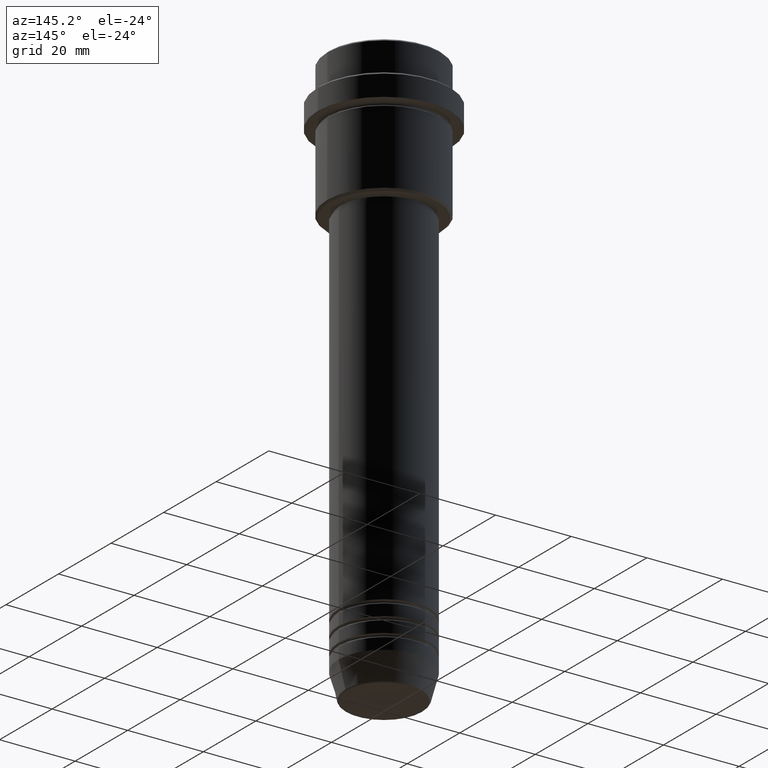
[diagram: clean part render]
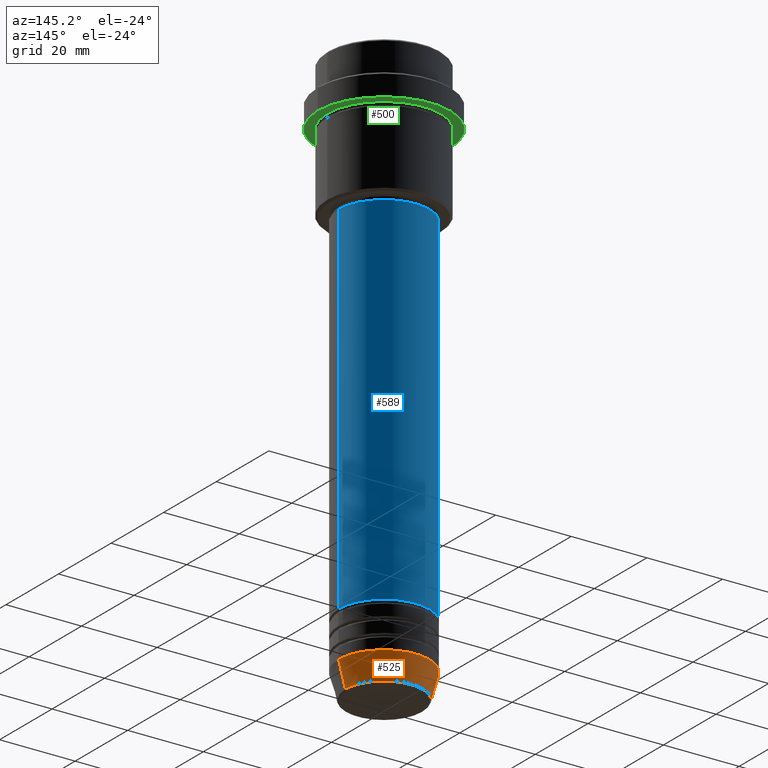
[diagram: same view with three faces highlighted in distinct colors, each labeled with its STEP entity id]
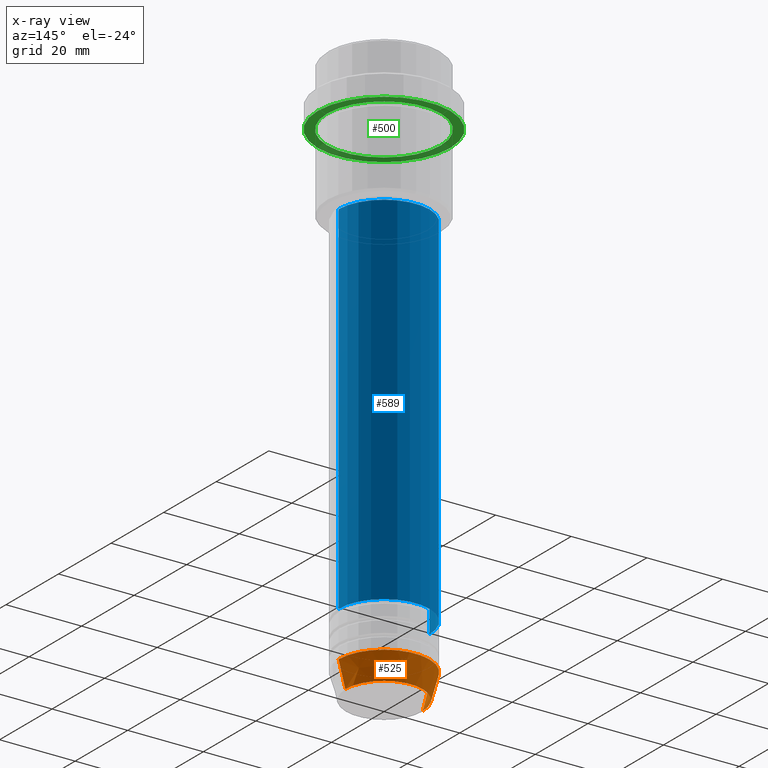
[diagram: x-ray of the same camera — body ghosted, the three highlighted faces saturated]
A machine part, auxiliary view with three faces highlighted in distinct colors.
The next image is the same camera in x-ray (body ghosted, the three faces saturated) — at least one of them is partly hidden behind the body in this view.
Their STEP definitions:

[orange] entity #525 — the highlighted conical surface has half-angle 15 deg.
#26 = VERTEX_POINT ( 'NONE', #375 ) ;
#30 = VECTOR ( 'NONE', #415, 1000.000000000000000 ) ;
#51 = CIRCLE ( 'NONE', #904, 10.22365507213718416 ) ;
#65 = CARTESIAN_POINT ( 'NONE',  ( 0.000000000000000000, 0.000000000000000000, -150.6294095225512422 ) ) ;
#105 = DIRECTION ( 'NONE',  ( -0.000000000000000000, -0.000000000000000000, 1.000000000000000000 ) ) ;
#117 = CARTESIAN_POINT ( 'NONE',  ( 12.00000000000000000, 0.000000000000000000, -144.0000000000000000 ) ) ;
#124 = CIRCLE ( 'NONE', #1133, 12.00000000000000000 ) ;
#202 = EDGE_CURVE ( 'NONE', #842, #960, #527, .T. ) ;
#204 = ORIENTED_EDGE ( 'NONE', *, *, #1298, .T. ) ;
#220 = DIRECTION ( 'NONE',  ( -0.000000000000000000, -0.000000000000000000, 1.000000000000000000 ) ) ;
#230 = CARTESIAN_POINT ( 'NONE',  ( -12.00000000000000000, 1.469576158976823947E-15, -144.0000000000000000 ) ) ;
#317 = CARTESIAN_POINT ( 'NONE',  ( 12.00000000000000000, 0.000000000000000000, -144.0000000000000000 ) ) ;
#375 = CARTESIAN_POINT ( 'NONE',  ( -10.22365507213718416, 1.360806402472382153E-15, -150.6294095225512422 ) ) ;
#401 = ORIENTED_EDGE ( 'NONE', *, *, #202, .F. ) ;
#405 = FACE_OUTER_BOUND ( 'NONE', #579, .T. ) ;
#406 = ORIENTED_EDGE ( 'NONE', *, *, #775, .F. ) ;
#415 = DIRECTION ( 'NONE',  ( -0.2588190451025222938, 3.169619151431783430E-17, 0.9659258262890678681 ) ) ;
#441 = ORIENTED_EDGE ( 'NONE', *, *, #751, .T. ) ;
#451 = VECTOR ( 'NONE', #1402, 1000.000000000000000 ) ;
#496 = DIRECTION ( 'NONE',  ( -0.000000000000000000, -0.000000000000000000, 1.000000000000000000 ) ) ;
#525 = ADVANCED_FACE ( 'NONE', ( #405 ), #1083, .T. ) ;
#527 = LINE ( 'NONE', #317, #451 ) ;
#579 = EDGE_LOOP ( 'NONE', ( #441, #204, #406, #401 ) ) ;
#648 = DIRECTION ( 'NONE',  ( 1.000000000000000000, 0.000000000000000000, 0.000000000000000000 ) ) ;
#715 = CARTESIAN_POINT ( 'NONE',  ( 10.22365507213718416, 0.000000000000000000, -150.6294095225512422 ) ) ;
#735 = CARTESIAN_POINT ( 'NONE',  ( 0.000000000000000000, 0.000000000000000000, -144.0000000000000000 ) ) ;
#751 = EDGE_CURVE ( 'NONE', #842, #26, #51, .T. ) ;
#775 = EDGE_CURVE ( 'NONE', #960, #991, #124, .T. ) ;
#842 = VERTEX_POINT ( 'NONE', #715 ) ;
#904 = AXIS2_PLACEMENT_3D ( 'NONE', #65, #496, #926 ) ;
#926 = DIRECTION ( 'NONE',  ( 1.000000000000000000, 0.000000000000000000, 0.000000000000000000 ) ) ;
#960 = VERTEX_POINT ( 'NONE', #117 ) ;
#991 = VERTEX_POINT ( 'NONE', #230 ) ;
#1064 = AXIS2_PLACEMENT_3D ( 'NONE', #735, #220, #1260 ) ;
#1083 = CONICAL_SURFACE ( 'NONE', #1064, 12.00000000000000000, 0.2617993877991510177 ) ;
#1133 = AXIS2_PLACEMENT_3D ( 'NONE', #1169, #105, #648 ) ;
#1166 = LINE ( 'NONE', #1176, #30 ) ;
#1169 = CARTESIAN_POINT ( 'NONE',  ( 0.000000000000000000, 0.000000000000000000, -144.0000000000000000 ) ) ;
#1176 = CARTESIAN_POINT ( 'NONE',  ( -12.00000000000000000, 1.469576158976823947E-15, -144.0000000000000000 ) ) ;
#1260 = DIRECTION ( 'NONE',  ( 1.000000000000000000, 0.000000000000000000, 0.000000000000000000 ) ) ;
#1298 = EDGE_CURVE ( 'NONE', #26, #991, #1166, .T. ) ;
#1402 = DIRECTION ( 'NONE',  ( 0.2588190451025222938, 0.000000000000000000, 0.9659258262890678681 ) ) ;

[blue] entity #589 — the highlighted cylindrical surface (partial cylindrical patch) has radius 12 mm, axis along (-0, -0, 1).
#8 = VERTEX_POINT ( 'NONE', #385 ) ;
#17 = VERTEX_POINT ( 'NONE', #703 ) ;
#67 = EDGE_CURVE ( 'NONE', #8, #873, #1156, .T. ) ;
#75 = CIRCLE ( 'NONE', #258, 11.99999999999999822 ) ;
#158 = CARTESIAN_POINT ( 'NONE',  ( 0.000000000000000000, 0.000000000000000000, -131.9999999999998579 ) ) ;
#209 = ORIENTED_EDGE ( 'NONE', *, *, #67, .T. ) ;
#258 = AXIS2_PLACEMENT_3D ( 'NONE', #1110, #770, #1012 ) ;
#291 = DIRECTION ( 'NONE',  ( -0.000000000000000000, -0.000000000000000000, 1.000000000000000000 ) ) ;
#308 = EDGE_LOOP ( 'NONE', ( #209, #1026, #447, #465 ) ) ;
#385 = CARTESIAN_POINT ( 'NONE',  ( 12.00000000000000000, 0.000000000000000000, -131.9999999999998579 ) ) ;
#413 = VERTEX_POINT ( 'NONE', #1016 ) ;
#431 = VECTOR ( 'NONE', #291, 1000.000000000000000 ) ;
#447 = ORIENTED_EDGE ( 'NONE', *, *, #932, .F. ) ;
#465 = ORIENTED_EDGE ( 'NONE', *, *, #1173, .F. ) ;
#493 = DIRECTION ( 'NONE',  ( -0.000000000000000000, -0.000000000000000000, 1.000000000000000000 ) ) ;
#501 = LINE ( 'NONE', #935, #1161 ) ;
#520 = AXIS2_PLACEMENT_3D ( 'NONE', #1099, #1324, #1194 ) ;
#587 = CARTESIAN_POINT ( 'NONE',  ( -12.00000000000000000, 1.469576158976823947E-15, -131.9999999999998579 ) ) ;
#589 = ADVANCED_FACE ( 'NONE', ( #1013 ), #773, .T. ) ;
#703 = CARTESIAN_POINT ( 'NONE',  ( -11.99999999999999822, 1.469576158976823750E-15, -37.00000000000000000 ) ) ;
#770 = DIRECTION ( 'NONE',  ( -0.000000000000000000, -0.000000000000000000, 1.000000000000000000 ) ) ;
#773 = CYLINDRICAL_SURFACE ( 'NONE', #520, 12.00000000000000000 ) ;
#873 = VERTEX_POINT ( 'NONE', #587 ) ;
#921 = DIRECTION ( 'NONE',  ( 1.000000000000000000, 0.000000000000000000, 0.000000000000000000 ) ) ;
#932 = EDGE_CURVE ( 'NONE', #413, #17, #75, .T. ) ;
#935 = CARTESIAN_POINT ( 'NONE',  ( 12.00000000000000000, 0.000000000000000000, 0.000000000000000000 ) ) ;
#941 = EDGE_CURVE ( 'NONE', #873, #17, #1033, .T. ) ;
#1012 = DIRECTION ( 'NONE',  ( 1.000000000000000000, 0.000000000000000000, 0.000000000000000000 ) ) ;
#1013 = FACE_OUTER_BOUND ( 'NONE', #308, .T. ) ;
#1016 = CARTESIAN_POINT ( 'NONE',  ( 11.99999999999999822, 0.000000000000000000, -37.00000000000000000 ) ) ;
#1026 = ORIENTED_EDGE ( 'NONE', *, *, #941, .T. ) ;
#1033 = LINE ( 'NONE', #1224, #431 ) ;
#1099 = CARTESIAN_POINT ( 'NONE',  ( 0.000000000000000000, 0.000000000000000000, 0.000000000000000000 ) ) ;
#1110 = CARTESIAN_POINT ( 'NONE',  ( 0.000000000000000000, 0.000000000000000000, -37.00000000000000000 ) ) ;
#1156 = CIRCLE ( 'NONE', #1315, 12.00000000000000000 ) ;
#1161 = VECTOR ( 'NONE', #1340, 1000.000000000000000 ) ;
#1173 = EDGE_CURVE ( 'NONE', #8, #413, #501, .T. ) ;
#1194 = DIRECTION ( 'NONE',  ( 1.000000000000000000, 0.000000000000000000, 0.000000000000000000 ) ) ;
#1224 = CARTESIAN_POINT ( 'NONE',  ( -12.00000000000000000, 1.469576158976823947E-15, 0.000000000000000000 ) ) ;
#1315 = AXIS2_PLACEMENT_3D ( 'NONE', #158, #493, #921 ) ;
#1324 = DIRECTION ( 'NONE',  ( -0.000000000000000000, -0.000000000000000000, 1.000000000000000000 ) ) ;
#1340 = DIRECTION ( 'NONE',  ( -0.000000000000000000, -0.000000000000000000, 1.000000000000000000 ) ) ;

[green] entity #500 — the highlighted planar face has unit normal (0, 0, -1).
#15 = CARTESIAN_POINT ( 'NONE',  ( 14.99999999999999645, 1.836970198721029194E-15, -14.99999999999998579 ) ) ;
#53 = EDGE_LOOP ( 'NONE', ( #1101, #854 ) ) ;
#73 = CIRCLE ( 'NONE', #1220, 17.50000000000000000 ) ;
#146 = VERTEX_POINT ( 'NONE', #305 ) ;
#181 = DIRECTION ( 'NONE',  ( -1.000000000000000000, 0.000000000000000000, -0.000000000000000000 ) ) ;
#211 = CIRCLE ( 'NONE', #997, 17.50000000000000000 ) ;
#271 = DIRECTION ( 'NONE',  ( -0.000000000000000000, -0.000000000000000000, 1.000000000000000000 ) ) ;
#281 = ORIENTED_EDGE ( 'NONE', *, *, #350, .F. ) ;
#293 = CARTESIAN_POINT ( 'NONE',  ( 17.50000000000000000, 0.000000000000000000, -14.99999999999998757 ) ) ;
#305 = CARTESIAN_POINT ( 'NONE',  ( -17.50000000000000000, 2.143131898507868248E-15, -14.99999999999998757 ) ) ;
#333 = EDGE_CURVE ( 'NONE', #1104, #1191, #838, .T. ) ;
#334 = FACE_OUTER_BOUND ( 'NONE', #419, .T. ) ;
#350 = EDGE_CURVE ( 'NONE', #528, #146, #73, .T. ) ;
#381 = DIRECTION ( 'NONE',  ( -0.000000000000000000, -0.000000000000000000, 1.000000000000000000 ) ) ;
#387 = AXIS2_PLACEMENT_3D ( 'NONE', #617, #1054, #181 ) ;
#396 = DIRECTION ( 'NONE',  ( -0.000000000000000000, -0.000000000000000000, 1.000000000000000000 ) ) ;
#419 = EDGE_LOOP ( 'NONE', ( #281, #964 ) ) ;
#422 = CARTESIAN_POINT ( 'NONE',  ( 0.000000000000000000, 0.000000000000000000, -14.99999999999998579 ) ) ;
#494 = DIRECTION ( 'NONE',  ( -1.000000000000000000, 0.000000000000000000, 0.000000000000000000 ) ) ;
#500 = ADVANCED_FACE ( 'NONE', ( #623, #334 ), #553, .T. ) ;
#528 = VERTEX_POINT ( 'NONE', #293 ) ;
#553 = PLANE ( 'NONE',  #387 ) ;
#617 = CARTESIAN_POINT ( 'NONE',  ( 0.000000000000000000, 17.50000000000000000, -14.99999999999998579 ) ) ;
#619 = AXIS2_PLACEMENT_3D ( 'NONE', #422, #654, #867 ) ;
#623 = FACE_BOUND ( 'NONE', #53, .T. ) ;
#654 = DIRECTION ( 'NONE',  ( -0.000000000000000000, -0.000000000000000000, 1.000000000000000000 ) ) ;
#771 = CIRCLE ( 'NONE', #619, 14.99999999999999645 ) ;
#838 = CIRCLE ( 'NONE', #1041, 14.99999999999999645 ) ;
#854 = ORIENTED_EDGE ( 'NONE', *, *, #333, .T. ) ;
#867 = DIRECTION ( 'NONE',  ( -1.000000000000000000, 0.000000000000000000, 0.000000000000000000 ) ) ;
#883 = EDGE_CURVE ( 'NONE', #146, #528, #211, .T. ) ;
#909 = CARTESIAN_POINT ( 'NONE',  ( 0.000000000000000000, 0.000000000000000000, -14.99999999999998757 ) ) ;
#964 = ORIENTED_EDGE ( 'NONE', *, *, #883, .F. ) ;
#997 = AXIS2_PLACEMENT_3D ( 'NONE', #1373, #396, #1121 ) ;
#1041 = AXIS2_PLACEMENT_3D ( 'NONE', #1240, #381, #494 ) ;
#1054 = DIRECTION ( 'NONE',  ( 0.000000000000000000, 0.000000000000000000, -1.000000000000000000 ) ) ;
#1056 = EDGE_CURVE ( 'NONE', #1191, #1104, #771, .T. ) ;
#1101 = ORIENTED_EDGE ( 'NONE', *, *, #1056, .T. ) ;
#1104 = VERTEX_POINT ( 'NONE', #15 ) ;
#1121 = DIRECTION ( 'NONE',  ( 1.000000000000000000, 0.000000000000000000, 0.000000000000000000 ) ) ;
#1191 = VERTEX_POINT ( 'NONE', #1306 ) ;
#1220 = AXIS2_PLACEMENT_3D ( 'NONE', #909, #271, #1355 ) ;
#1240 = CARTESIAN_POINT ( 'NONE',  ( 0.000000000000000000, 0.000000000000000000, -14.99999999999998579 ) ) ;
#1306 = CARTESIAN_POINT ( 'NONE',  ( -14.99999999999999645, 0.000000000000000000, -14.99999999999998579 ) ) ;
#1355 = DIRECTION ( 'NONE',  ( 1.000000000000000000, 0.000000000000000000, 0.000000000000000000 ) ) ;
#1373 = CARTESIAN_POINT ( 'NONE',  ( 0.000000000000000000, 0.000000000000000000, -14.99999999999998757 ) ) ;